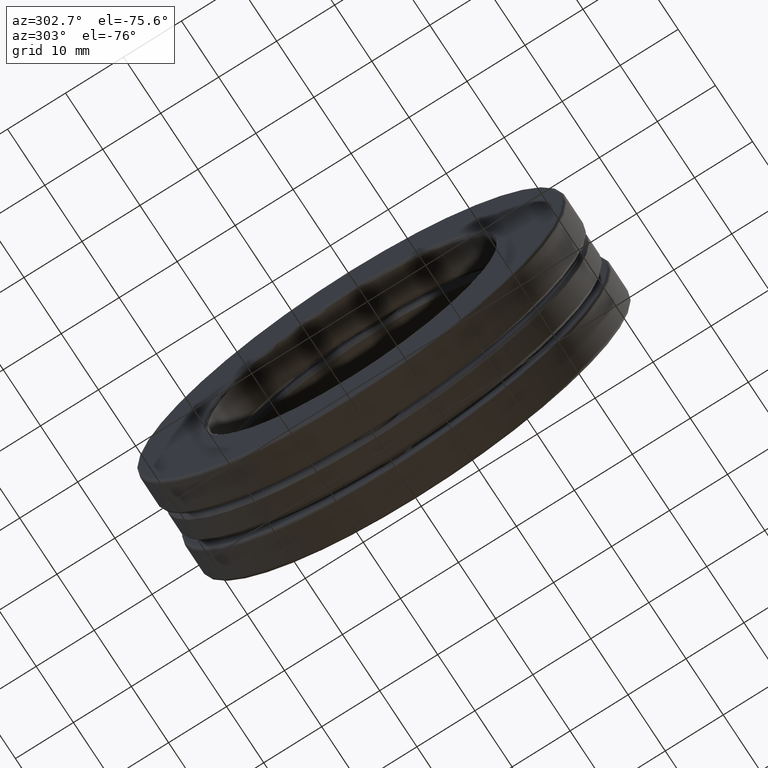
[diagram: clean part render]
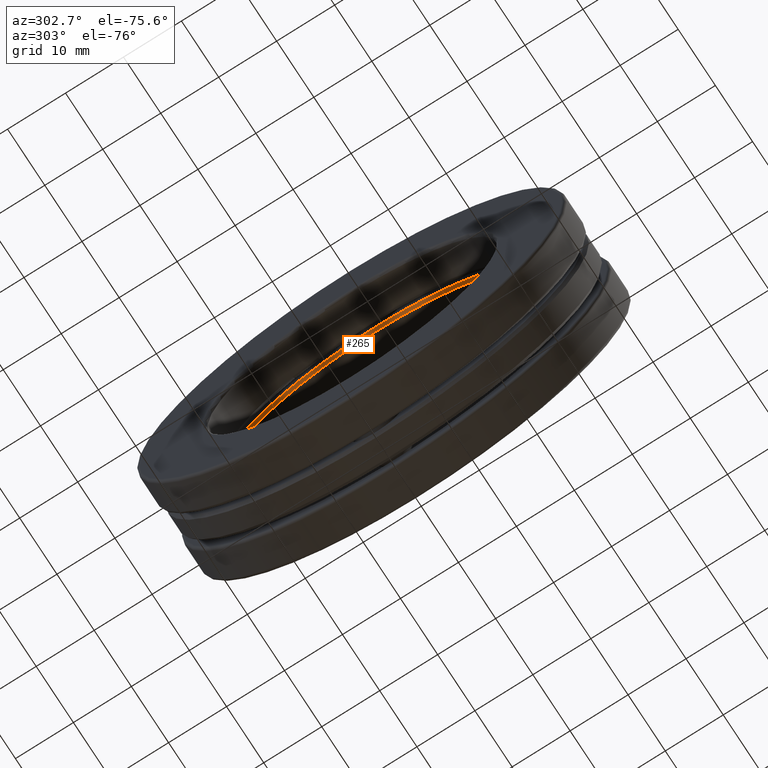
[diagram: same view with one face highlighted and labeled with its STEP entity id]
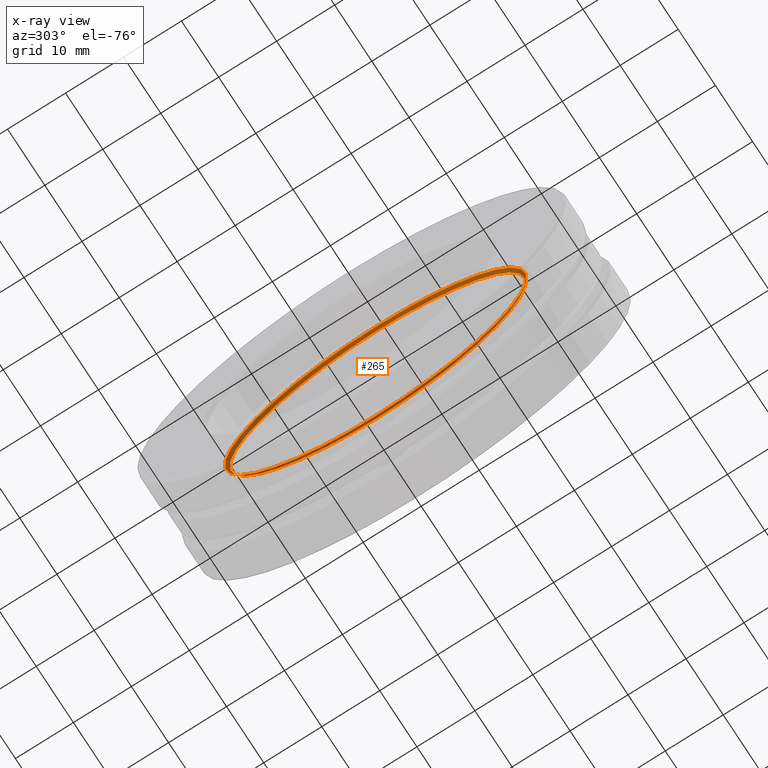
[diagram: x-ray of the same camera — body ghosted, the highlighted face saturated]
A machine part, auxiliary view. The second image highlights one B-rep face of the part: STEP entity #265.
The next image is the same camera in x-ray: the body ghosted, the highlighted face saturated — about 36% of this face is hidden behind the body in this view.
In plain terms, the highlighted conical surface has half-angle 45 deg.
Its self-contained STEP definition (entity closure, byte-faithful):
#16 = EDGE_LOOP ( 'NONE', ( #767 ) ) ;
#92 = DIRECTION ( 'NONE',  ( -1.000000000000000000, -0.0000000000000000000, -0.0000000000000000000 ) ) ;
#104 = EDGE_LOOP ( 'NONE', ( #244 ) ) ;
#151 = CARTESIAN_POINT ( 'NONE',  ( -0.08862499999999996800, 0.0000000000000000000, 1.024500000000000200 ) ) ;
#156 = CARTESIAN_POINT ( 'NONE',  ( -0.08862499999999996800, 0.0000000000000000000, 0.0000000000000000000 ) ) ;
#157 = EDGE_CURVE ( 'NONE', #325, #325, #408, .T. ) ;
#183 = CARTESIAN_POINT ( 'NONE',  ( -0.08862499999999996800, 0.0000000000000000000, 0.0000000000000000000 ) ) ;
#244 = ORIENTED_EDGE ( 'NONE', *, *, #383, .T. ) ;
#265 = ADVANCED_FACE ( 'NONE', ( #616, #755 ), #453, .F. ) ;
#325 = VERTEX_POINT ( 'NONE', #343 ) ;
#343 = CARTESIAN_POINT ( 'NONE',  ( -0.06862499999999997800, 0.0000000000000000000, 1.004499999999999900 ) ) ;
#383 = EDGE_CURVE ( 'NONE', #563, #563, #479, .T. ) ;
#395 = DIRECTION ( 'NONE',  ( -1.000000000000000000, -0.0000000000000000000, -0.0000000000000000000 ) ) ;
#408 = CIRCLE ( 'NONE', #538, 1.004499999999999900 ) ;
#453 = CONICAL_SURFACE ( 'NONE', #500, 1.024500000000000200, 0.7853981633974500600 ) ;
#466 = DIRECTION ( 'NONE',  ( 0.0000000000000000000, 0.0000000000000000000, 1.000000000000000000 ) ) ;
#479 = CIRCLE ( 'NONE', #546, 1.024500000000000200 ) ;
#500 = AXIS2_PLACEMENT_3D ( 'NONE', #156, #92, #516 ) ;
#516 = DIRECTION ( 'NONE',  ( 0.0000000000000000000, 0.0000000000000000000, 1.000000000000000000 ) ) ;
#538 = AXIS2_PLACEMENT_3D ( 'NONE', #703, #395, #466 ) ;
#546 = AXIS2_PLACEMENT_3D ( 'NONE', #183, #753, #816 ) ;
#563 = VERTEX_POINT ( 'NONE', #151 ) ;
#616 = FACE_BOUND ( 'NONE', #16, .T. ) ;
#703 = CARTESIAN_POINT ( 'NONE',  ( -0.06862499999999997800, 0.0000000000000000000, 0.0000000000000000000 ) ) ;
#753 = DIRECTION ( 'NONE',  ( -1.000000000000000000, -0.0000000000000000000, -0.0000000000000000000 ) ) ;
#755 = FACE_OUTER_BOUND ( 'NONE', #104, .T. ) ;
#767 = ORIENTED_EDGE ( 'NONE', *, *, #157, .F. ) ;
#816 = DIRECTION ( 'NONE',  ( 0.0000000000000000000, 0.0000000000000000000, 1.000000000000000000 ) ) ;